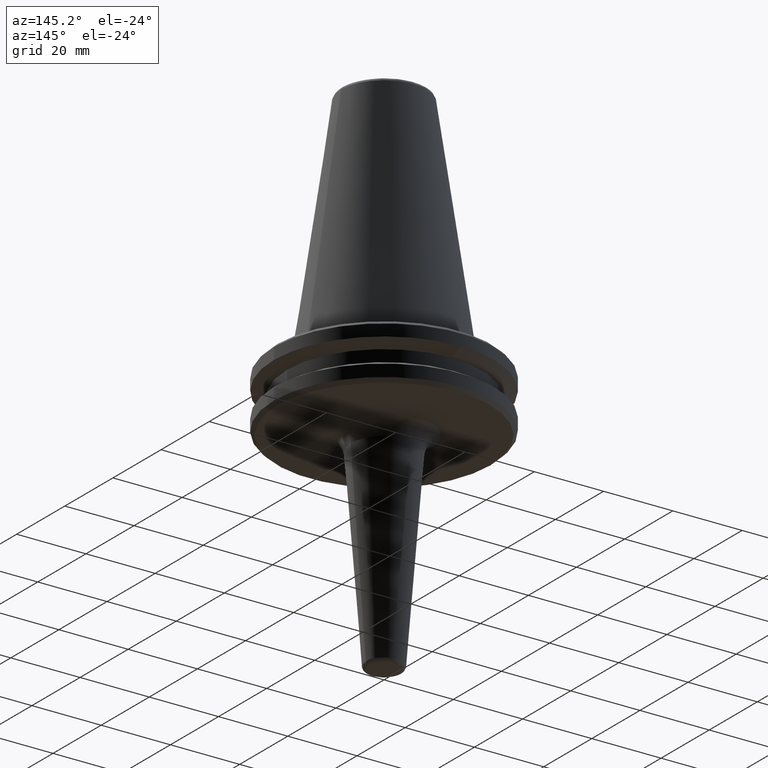
[diagram: clean part render]
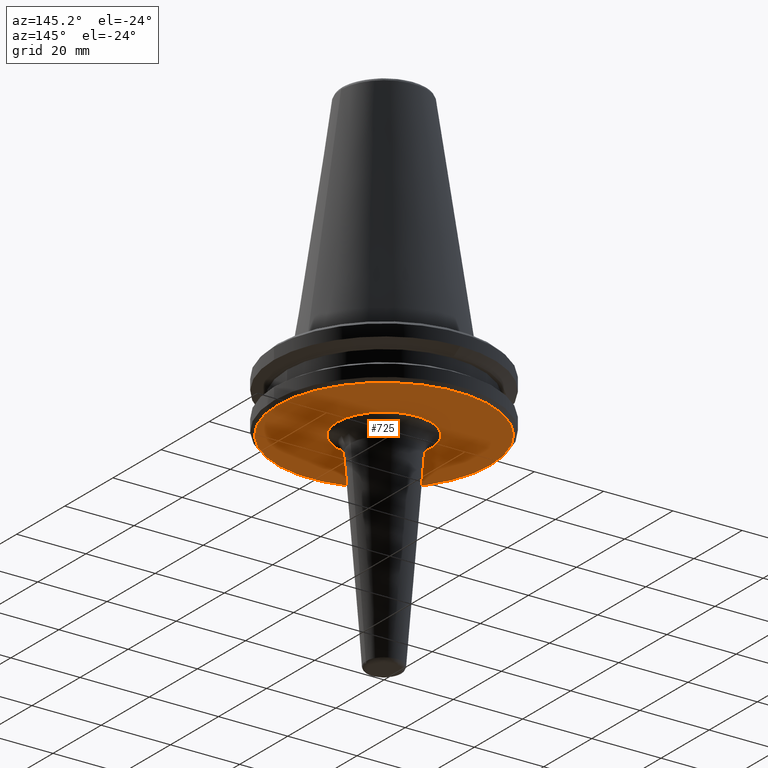
[diagram: same view with one face highlighted and labeled with its STEP entity id]
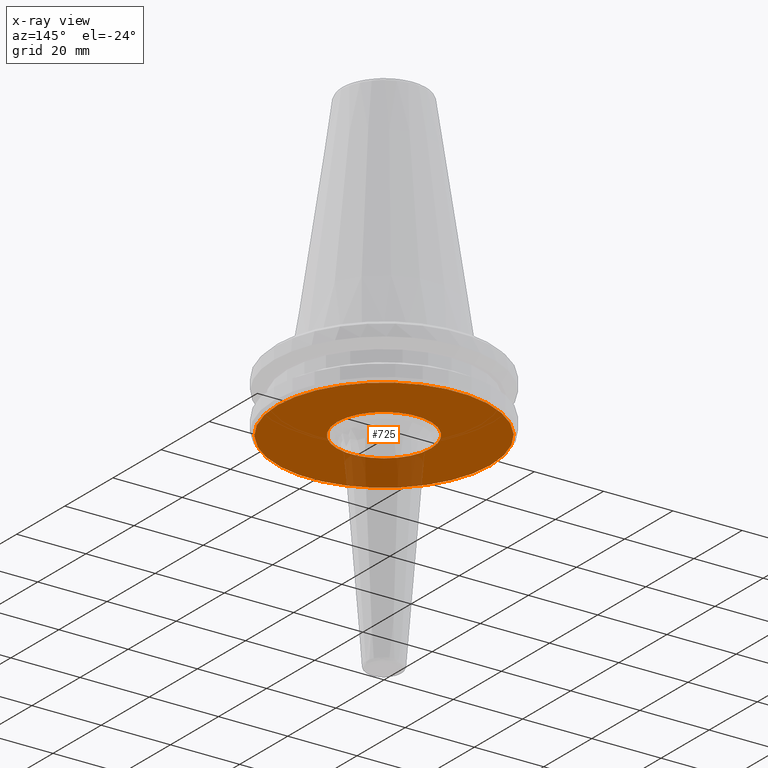
[diagram: x-ray of the same camera — body ghosted, the highlighted face saturated]
A machine part, auxiliary view. The second image highlights one B-rep face of the part: STEP entity #725.
The next image is the same camera in x-ray: the body ghosted, the highlighted face saturated — about 13% of this face is hidden behind the body in this view.
In plain terms, the highlighted planar face has unit normal (0, 0, -1).
Its self-contained STEP definition (entity closure, byte-faithful):
#44 = CIRCLE ( 'NONE', #568, 30.75000000000072100 ) ;
#62 = CARTESIAN_POINT ( 'NONE',  ( 0.0000000000000000000, 0.0000000000000000000, -19.10000000000006200 ) ) ;
#71 = DIRECTION ( 'NONE',  ( -0.0000000000000000000, -0.0000000000000000000, 1.000000000000000000 ) ) ;
#126 = EDGE_LOOP ( 'NONE', ( #365, #666 ) ) ;
#131 = CARTESIAN_POINT ( 'NONE',  ( -13.54591944521316200, 1.658896689008818800E-015, -19.10000000000000500 ) ) ;
#136 = CARTESIAN_POINT ( 'NONE',  ( 0.0000000000000000000, 0.0000000000000000000, -19.10000000000000500 ) ) ;
#149 = EDGE_CURVE ( 'NONE', #691, #1010, #320, .T. ) ;
#165 = DIRECTION ( 'NONE',  ( 1.000000000000000000, 0.0000000000000000000, 0.0000000000000000000 ) ) ;
#189 = EDGE_CURVE ( 'NONE', #337, #992, #601, .T. ) ;
#240 = DIRECTION ( 'NONE',  ( -0.0000000000000000000, -0.0000000000000000000, 1.000000000000000000 ) ) ;
#251 = DIRECTION ( 'NONE',  ( 1.000000000000000000, 0.0000000000000000000, 0.0000000000000000000 ) ) ;
#258 = CARTESIAN_POINT ( 'NONE',  ( 0.0000000000000000000, 0.0000000000000000000, -19.10000000000006200 ) ) ;
#263 = EDGE_CURVE ( 'NONE', #1010, #691, #683, .T. ) ;
#320 = CIRCLE ( 'NONE', #1064, 13.54591944521316000 ) ;
#337 = VERTEX_POINT ( 'NONE', #436 ) ;
#343 = DIRECTION ( 'NONE',  ( 1.000000000000000000, 0.0000000000000000000, 0.0000000000000000000 ) ) ;
#345 = DIRECTION ( 'NONE',  ( 0.0000000000000000000, 0.0000000000000000000, 1.000000000000000000 ) ) ;
#365 = ORIENTED_EDGE ( 'NONE', *, *, #751, .F. ) ;
#433 = CARTESIAN_POINT ( 'NONE',  ( 0.0000000000000000000, 0.0000000000000000000, -19.10000000000000500 ) ) ;
#436 = CARTESIAN_POINT ( 'NONE',  ( -30.75000000000072100, 3.827021247335475700E-015, -19.10000000000006200 ) ) ;
#473 = DIRECTION ( 'NONE',  ( 0.0000000000000000000, 0.0000000000000000000, 1.000000000000000000 ) ) ;
#528 = EDGE_LOOP ( 'NONE', ( #806, #629 ) ) ;
#568 = AXIS2_PLACEMENT_3D ( 'NONE', #62, #71, #165 ) ;
#601 = CIRCLE ( 'NONE', #1263, 30.75000000000072100 ) ;
#609 = FACE_BOUND ( 'NONE', #528, .T. ) ;
#629 = ORIENTED_EDGE ( 'NONE', *, *, #263, .T. ) ;
#634 = CARTESIAN_POINT ( 'NONE',  ( 13.54591944521316200, 0.0000000000000000000, -19.10000000000000500 ) ) ;
#666 = ORIENTED_EDGE ( 'NONE', *, *, #189, .F. ) ;
#683 = CIRCLE ( 'NONE', #1279, 13.54591944521316000 ) ;
#691 = VERTEX_POINT ( 'NONE', #634 ) ;
#725 = ADVANCED_FACE ( 'NONE', ( #609, #1101 ), #756, .T. ) ;
#730 = DIRECTION ( 'NONE',  ( -1.000000000000000000, 0.0000000000000000000, -0.0000000000000000000 ) ) ;
#751 = EDGE_CURVE ( 'NONE', #992, #337, #44, .T. ) ;
#756 = PLANE ( 'NONE',  #853 ) ;
#806 = ORIENTED_EDGE ( 'NONE', *, *, #149, .T. ) ;
#816 = DIRECTION ( 'NONE',  ( 1.000000000000000000, 0.0000000000000000000, 0.0000000000000000000 ) ) ;
#853 = AXIS2_PLACEMENT_3D ( 'NONE', #1047, #960, #730 ) ;
#960 = DIRECTION ( 'NONE',  ( 0.0000000000000000000, 0.0000000000000000000, -1.000000000000000000 ) ) ;
#992 = VERTEX_POINT ( 'NONE', #1058 ) ;
#1010 = VERTEX_POINT ( 'NONE', #131 ) ;
#1047 = CARTESIAN_POINT ( 'NONE',  ( 0.0000000000000000000, 2.166680460328873200E-015, -19.10000000000000500 ) ) ;
#1058 = CARTESIAN_POINT ( 'NONE',  ( 30.75000000000072100, 0.0000000000000000000, -19.10000000000006200 ) ) ;
#1064 = AXIS2_PLACEMENT_3D ( 'NONE', #433, #345, #343 ) ;
#1101 = FACE_OUTER_BOUND ( 'NONE', #126, .T. ) ;
#1263 = AXIS2_PLACEMENT_3D ( 'NONE', #258, #240, #816 ) ;
#1279 = AXIS2_PLACEMENT_3D ( 'NONE', #136, #473, #251 ) ;